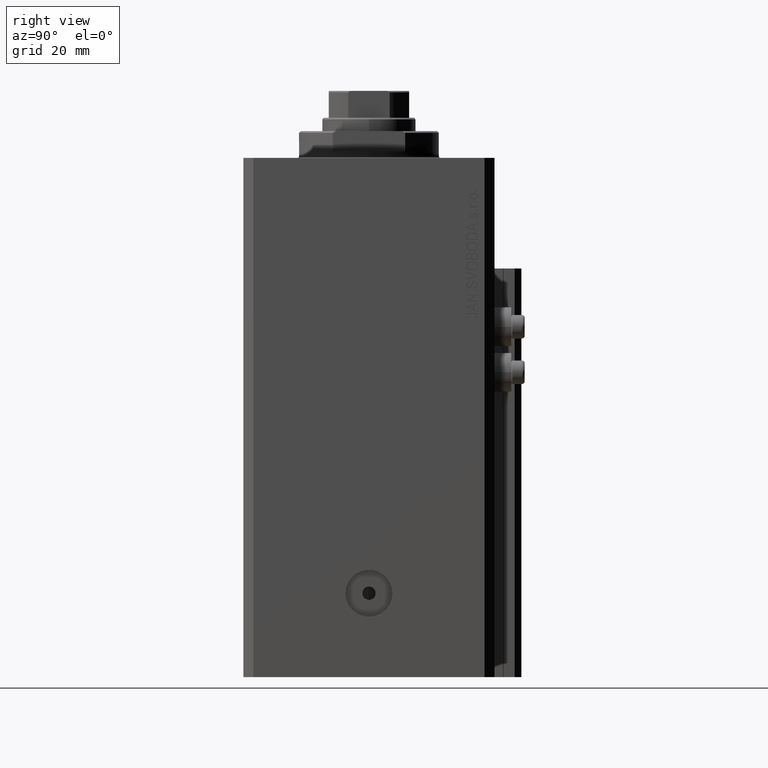
[diagram: clean part render]
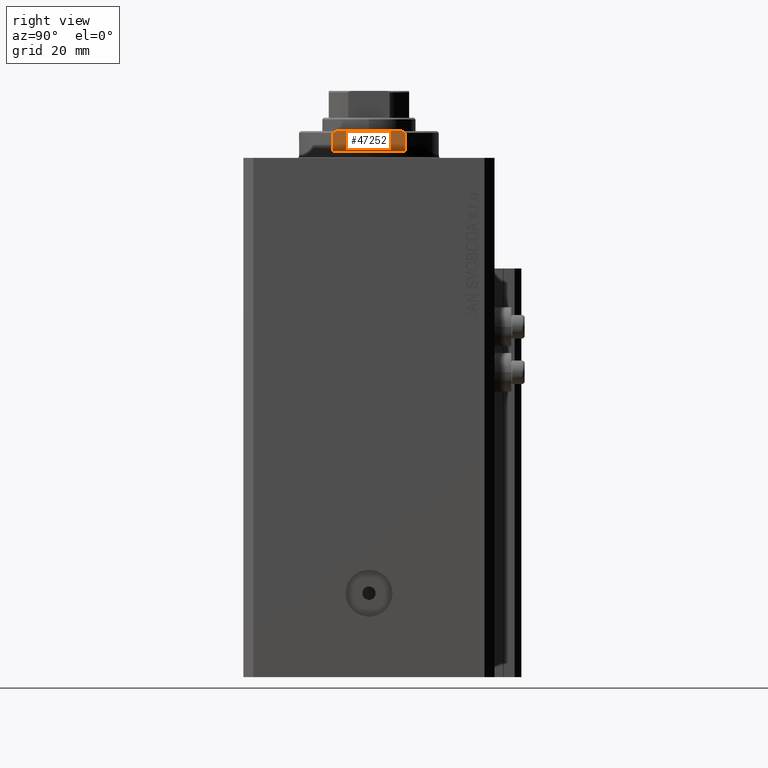
[diagram: same view with one face highlighted and labeled with its STEP entity id]
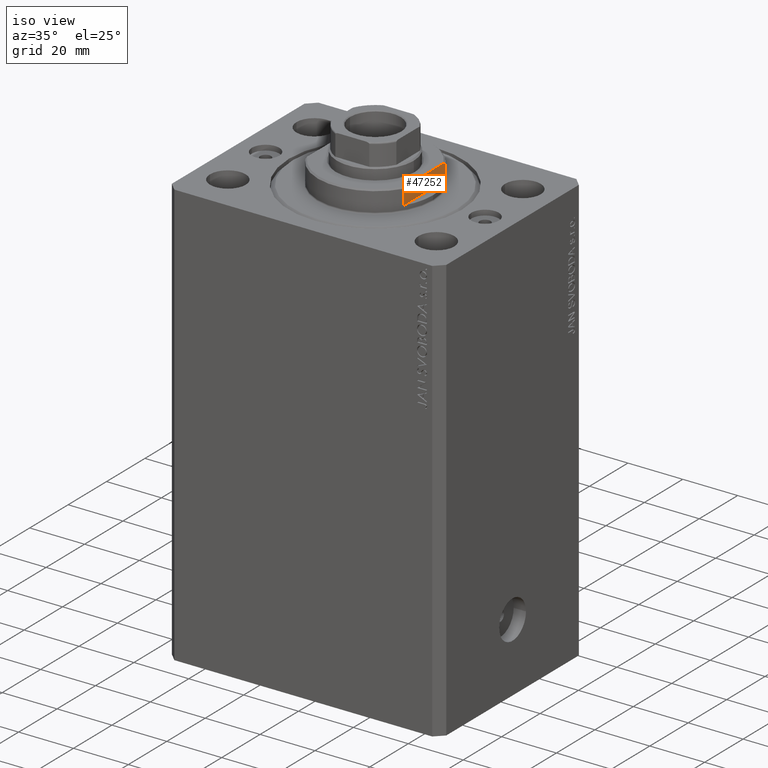
[diagram: same view with one face highlighted and labeled with its STEP entity id]
A machine part, right view. The second image highlights one B-rep face of the part: STEP entity #47252.
A second angle (iso view) of the same face is appended — the face is thin or edge-on in the first view.
In plain terms, the highlighted planar face has unit normal (-1, 0, 0).
Its self-contained STEP definition (entity closure, byte-faithful):
#264 = CARTESIAN_POINT ( 'NONE',  ( -18.00000000000000000, -10.81665382639197048, -7.500000000000017764 ) ) ;
#983 = CARTESIAN_POINT ( 'NONE',  ( -18.00000000000000000, 10.81665382639197048, -8.000000000000000000 ) ) ;
#1449 = LINE ( 'NONE', #983, #4466 ) ;
#1928 = VERTEX_POINT ( 'NONE', #9810 ) ;
#2000 = VERTEX_POINT ( 'NONE', #264 ) ;
#3630 = CARTESIAN_POINT ( 'NONE',  ( -18.00000000000000000, -9.810708435174332109, -8.000000000000000000 ) ) ;
#4370 = PLANE ( 'NONE',  #20539 ) ;
#4466 = VECTOR ( 'NONE', #19341, 1000.000000000000000 ) ;
#5047 = ORIENTED_EDGE ( 'NONE', *, *, #8284, .T. ) ;
#5107 = CARTESIAN_POINT ( 'NONE',  ( -18.00000000000000000, 10.48362233087180506, -7.671537447634650064 ) ) ;
#6253 = CARTESIAN_POINT ( 'NONE',  ( -18.00000000000000000, -10.81665382639197048, -8.000000000000000000 ) ) ;
#7139 = CARTESIAN_POINT ( 'NONE',  ( -18.00000000000000000, -41.24318125460256113, -2.000000000000000000 ) ) ;
#8284 = EDGE_CURVE ( 'NONE', #1928, #35857, #29019, .T. ) ;
#8529 = EDGE_LOOP ( 'NONE', ( #5047, #13308, #27385, #17164, #37921, #22070 ) ) ;
#9810 = CARTESIAN_POINT ( 'NONE',  ( -18.00000000000000000, 10.81665382639197048, -7.500000000000016875 ) ) ;
#10532 = DIRECTION ( 'NONE',  ( 0.000000000000000000, 0.000000000000000000, -1.000000000000000000 ) ) ;
#11238 = VECTOR ( 'NONE', #16755, 1000.000000000000000 ) ;
#12799 = VECTOR ( 'NONE', #10532, 1000.000000000000000 ) ;
#13308 = ORIENTED_EDGE ( 'NONE', *, *, #15245, .T. ) ;
#15245 = EDGE_CURVE ( 'NONE', #35857, #41231, #33685, .T. ) ;
#16755 = DIRECTION ( 'NONE',  ( -0.000000000000000000, -1.000000000000000000, -0.000000000000000000 ) ) ;
#17109 = VECTOR ( 'NONE', #22230, 1000.000000000000000 ) ;
#17164 = ORIENTED_EDGE ( 'NONE', *, *, #18880, .F. ) ;
#18410 = VERTEX_POINT ( 'NONE', #32380 ) ;
#18680 = DIRECTION ( 'NONE',  ( 0.000000000000000000, 0.000000000000000000, -1.000000000000000000 ) ) ;
#18880 = EDGE_CURVE ( 'NONE', #25103, #2000, #38949, .T. ) ;
#19069 = EDGE_CURVE ( 'NONE', #1928, #18410, #1449, .T. ) ;
#19341 = DIRECTION ( 'NONE',  ( -0.000000000000000000, -0.000000000000000000, 1.000000000000000000 ) ) ;
#19657 = CARTESIAN_POINT ( 'NONE',  ( -18.00000000000000000, 9.810708435174332109, -8.000000000000000000 ) ) ;
#20539 = AXIS2_PLACEMENT_3D ( 'NONE', #22036, #29433, #18680 ) ;
#22036 = CARTESIAN_POINT ( 'NONE',  ( -18.00000000000000000, -41.24318125460256113, -2.000000000000000000 ) ) ;
#22070 = ORIENTED_EDGE ( 'NONE', *, *, #19069, .F. ) ;
#22230 = DIRECTION ( 'NONE',  ( -0.000000000000000000, -1.000000000000000000, -0.000000000000000000 ) ) ;
#22544 = CARTESIAN_POINT ( 'NONE',  ( -18.00000000000000000, 10.14839560199154533, -7.838392666539328424 ) ) ;
#23180 = CARTESIAN_POINT ( 'NONE',  ( -18.00000000000000000, -41.24318125460256113, -8.000000000000000000 ) ) ;
#23256 = CARTESIAN_POINT ( 'NONE',  ( -18.00000000000000000, 10.81665382639197048, -7.500000000000016875 ) ) ;
#23461 = CARTESIAN_POINT ( 'NONE',  ( -18.00000000000000000, -10.81665382639197048, -2.000000000000000000 ) ) ;
#23702 = CARTESIAN_POINT ( 'NONE',  ( -18.00000000000000000, -9.810708435174332109, -8.000000000000000000 ) ) ;
#24412 = EDGE_CURVE ( 'NONE', #41231, #2000, #28679, .T. ) ;
#25103 = VERTEX_POINT ( 'NONE', #23461 ) ;
#25356 = CARTESIAN_POINT ( 'NONE',  ( -18.00000000000000000, -10.14885752588745049, -7.838171603092474626 ) ) ;
#27385 = ORIENTED_EDGE ( 'NONE', *, *, #24412, .T. ) ;
#28460 = CARTESIAN_POINT ( 'NONE',  ( -18.00000000000000000, -10.81665382639197048, -7.500000000000017764 ) ) ;
#28679 = B_SPLINE_CURVE_WITH_KNOTS ( 'NONE', 3,
 ( #3630, #25356, #32743, #28460 ),
 .UNSPECIFIED., .F., .F.,
 ( 4, 4 ),
 ( 0.06217926064546155235, 0.06331210020888052015 ),
 .UNSPECIFIED. ) ;
#29019 = B_SPLINE_CURVE_WITH_KNOTS ( 'NONE', 3,
 ( #23256, #5107, #22544, #19657 ),
 .UNSPECIFIED., .F., .F.,
 ( 4, 4 ),
 ( 0.04062426037072789514, 0.04174950919407467709 ),
 .UNSPECIFIED. ) ;
#29433 = DIRECTION ( 'NONE',  ( 1.000000000000000000, 0.000000000000000000, 0.000000000000000000 ) ) ;
#29784 = CARTESIAN_POINT ( 'NONE',  ( -18.00000000000000000, 9.810708435174332109, -8.000000000000000000 ) ) ;
#32380 = CARTESIAN_POINT ( 'NONE',  ( -18.00000000000000000, 10.81665382639197048, -2.000000000000000000 ) ) ;
#32743 = CARTESIAN_POINT ( 'NONE',  ( -18.00000000000000000, -10.48405973417029635, -7.671312150488895476 ) ) ;
#33685 = LINE ( 'NONE', #23180, #17109 ) ;
#35857 = VERTEX_POINT ( 'NONE', #29784 ) ;
#37921 = ORIENTED_EDGE ( 'NONE', *, *, #41387, .F. ) ;
#38949 = LINE ( 'NONE', #6253, #12799 ) ;
#39848 = LINE ( 'NONE', #7139, #11238 ) ;
#41231 = VERTEX_POINT ( 'NONE', #23702 ) ;
#41387 = EDGE_CURVE ( 'NONE', #18410, #25103, #39848, .T. ) ;
#44002 = FACE_OUTER_BOUND ( 'NONE', #8529, .T. ) ;
#47252 = ADVANCED_FACE ( 'NONE', ( #44002 ), #4370, .F. ) ;